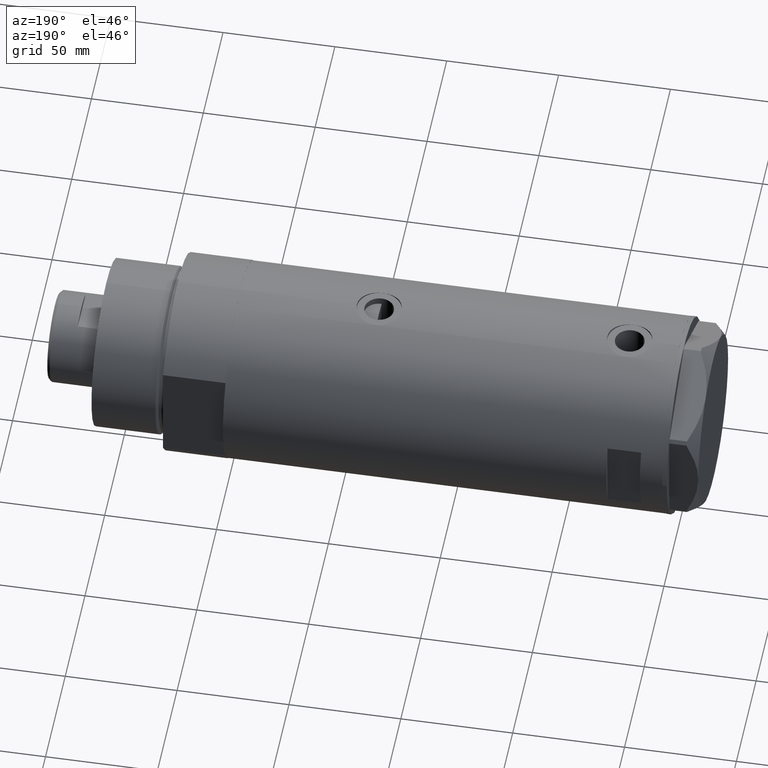
[diagram: clean part render]
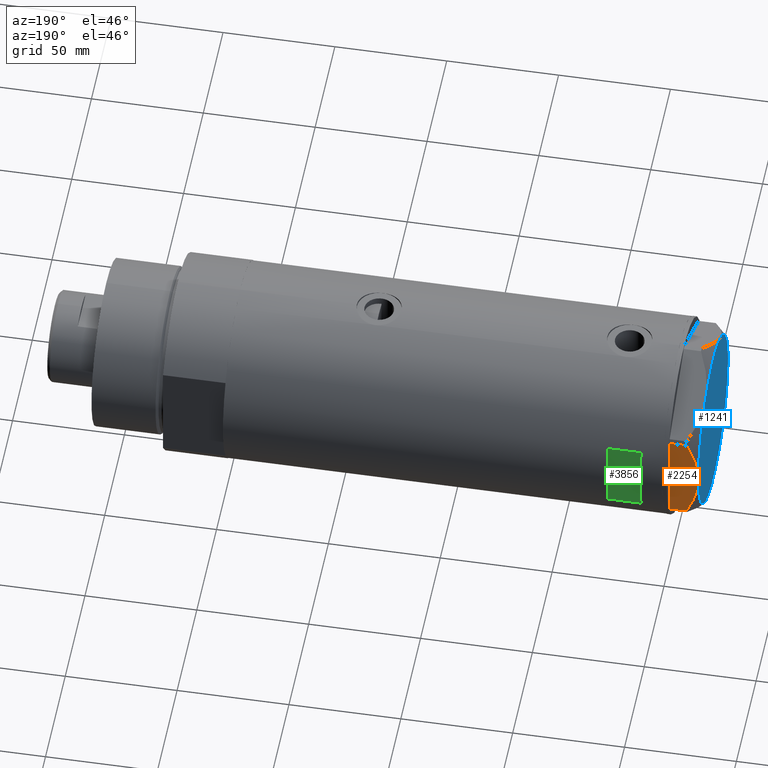
[diagram: same view with three faces highlighted in distinct colors, each labeled with its STEP entity id]
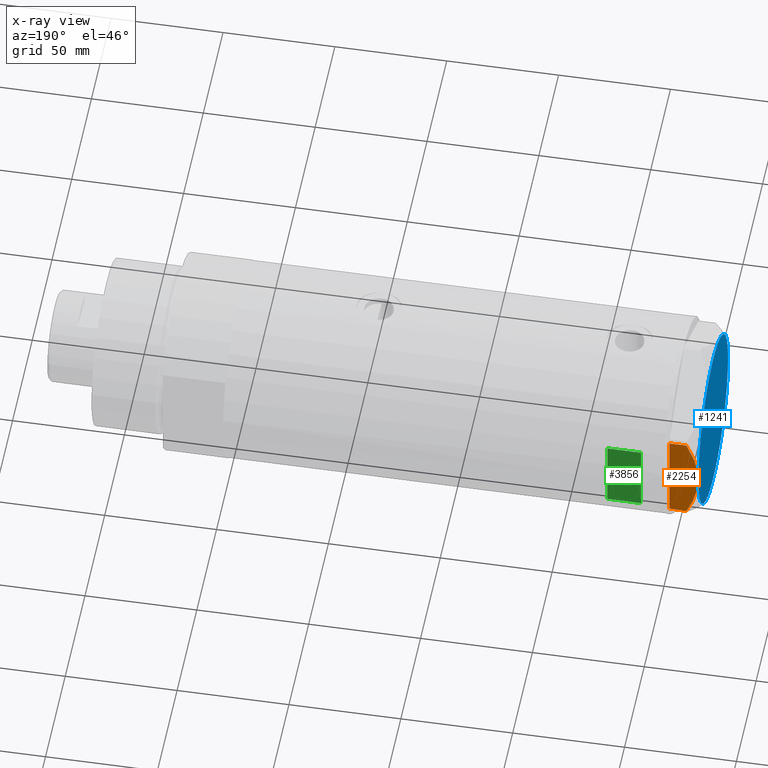
[diagram: x-ray of the same camera — body ghosted, the three highlighted faces saturated]
A machine part, auxiliary view with three faces highlighted in distinct colors.
The next image is the same camera in x-ray (body ghosted, the three faces saturated) — at least one of them is partly hidden behind the body in this view.
Their STEP definitions:

[orange] entity #2254 — the highlighted planar face has unit normal (0, -1, -0).
#134 = CARTESIAN_POINT ( 'NONE',  ( 37.75000000000000000, 20.67497266190835958, 13.00000000000000000 ) ) ;
#207 = CARTESIAN_POINT ( 'NONE',  ( 37.75000000000000711, 8.905753572404311313, 11.99914237172014353 ) ) ;
#215 = CARTESIAN_POINT ( 'NONE',  ( 37.75000000000002132, -20.67497266190835958, 0.000000000000000000 ) ) ;
#376 = VECTOR ( 'NONE', #2470, 1000.000000000000000 ) ;
#396 = DIRECTION ( 'NONE',  ( 0.000000000000000000, 0.000000000000000000, 1.000000000000000000 ) ) ;
#553 = CARTESIAN_POINT ( 'NONE',  ( 37.75000000000001421, -14.89874562435959504, 10.17375260246623547 ) ) ;
#623 = LINE ( 'NONE', #2355, #4203 ) ;
#650 = EDGE_CURVE ( 'NONE', #1083, #2188, #4208, .T. ) ;
#651 = CARTESIAN_POINT ( 'NONE',  ( 37.75000000000000000, 14.04742653794396823, 10.50092616350622166 ) ) ;
#868 = EDGE_CURVE ( 'NONE', #2104, #3434, #2542, .T. ) ;
#998 = CARTESIAN_POINT ( 'NONE',  ( 37.75000000000000000, 17.40390235304479560, 9.187919079516760235 ) ) ;
#1083 = VERTEX_POINT ( 'NONE', #2197 ) ;
#1132 = VERTEX_POINT ( 'NONE', #2803 ) ;
#1153 = CARTESIAN_POINT ( 'NONE',  ( 37.75000000000001421, -12.33018559404072256, 11.04557586999680296 ) ) ;
#1172 = CARTESIAN_POINT ( 'NONE',  ( 37.75000000000001421, -19.06473524669325315, 8.482612457517156201 ) ) ;
#1183 = B_SPLINE_CURVE_WITH_KNOTS ( 'NONE', 3,
 ( #2909, #1172, #2314, #553, #4302, #1153, #1204, #1546, #3977, #2602 ),
 .UNSPECIFIED., .F., .F.,
 ( 4, 2, 2, 2, 4 ),
 ( 0.05601050456479946676, 0.06138217239161374711, 0.06406800630502089422, 0.06675384021842803439, 0.07749717587205659508 ),
 .UNSPECIFIED. ) ;
#1204 = CARTESIAN_POINT ( 'NONE',  ( 37.75000000000002132, -11.46926194450820802, 11.30493988086502632 ) ) ;
#1279 = CARTESIAN_POINT ( 'NONE',  ( 37.75000000000000711, 12.34877760086738441, 11.06613894200179260 ) ) ;
#1291 = DIRECTION ( 'NONE',  ( -1.000000000000000000, -4.775569585389645902E-16, 0.000000000000000000 ) ) ;
#1360 = AXIS2_PLACEMENT_3D ( 'NONE', #1608, #1291, #1957 ) ;
#1383 = EDGE_CURVE ( 'NONE', #1132, #3434, #2918, .T. ) ;
#1546 = CARTESIAN_POINT ( 'NONE',  ( 37.75000000000000711, -7.143641079404811300, 12.47474846747315347 ) ) ;
#1608 = CARTESIAN_POINT ( 'NONE',  ( 37.75000000000002132, -21.79497266190837124, 13.00000000000000000 ) ) ;
#1643 = CARTESIAN_POINT ( 'NONE',  ( 37.75000000000000000, 19.05362936076134162, 8.470554105526112210 ) ) ;
#1683 = CARTESIAN_POINT ( 'NONE',  ( 37.75000000000000000, 20.67497266190835958, 7.709124142616976094 ) ) ;
#1717 = EDGE_LOOP ( 'NONE', ( #2786, #3218, #2083, #1727, #2628 ) ) ;
#1727 = ORIENTED_EDGE ( 'NONE', *, *, #868, .T. ) ;
#1957 = DIRECTION ( 'NONE',  ( 4.775569585389645902E-16, -1.000000000000000000, 0.000000000000000000 ) ) ;
#2040 = CARTESIAN_POINT ( 'NONE',  ( 37.75000000000000000, 7.161343005612795132, 12.36677985830370829 ) ) ;
#2083 = ORIENTED_EDGE ( 'NONE', *, *, #4547, .T. ) ;
#2104 = VERTEX_POINT ( 'NONE', #2570 ) ;
#2188 = VERTEX_POINT ( 'NONE', #215 ) ;
#2197 = CARTESIAN_POINT ( 'NONE',  ( 37.75000000000002132, -20.67497266190837024, 7.709124142616982311 ) ) ;
#2236 = VECTOR ( 'NONE', #396, 1000.000000000000000 ) ;
#2250 = CARTESIAN_POINT ( 'NONE',  ( 37.75000000000000711, 1.802777518484591547E-14, 13.00000000000000000 ) ) ;
#2254 = ADVANCED_FACE ( 'NONE', ( #4438 ), #4104, .F. ) ;
#2314 = CARTESIAN_POINT ( 'NONE',  ( 37.75000000000002132, -17.42329546264822682, 9.202188366597432889 ) ) ;
#2355 = CARTESIAN_POINT ( 'NONE',  ( 37.75000000000002132, -21.79497266190837124, 0.000000000000000000 ) ) ;
#2390 = CARTESIAN_POINT ( 'NONE',  ( 37.75000000000000711, 16.56731140591521978, 9.531835068628826235 ) ) ;
#2470 = DIRECTION ( 'NONE',  ( 0.000000000000000000, 0.000000000000000000, -1.000000000000000000 ) ) ;
#2542 = LINE ( 'NONE', #134, #2236 ) ;
#2570 = CARTESIAN_POINT ( 'NONE',  ( 37.75000000000000000, 20.67497266190835958, 0.000000000000000000 ) ) ;
#2602 = CARTESIAN_POINT ( 'NONE',  ( 37.75000000000000711, 1.802777518484591547E-14, 13.00000000000000000 ) ) ;
#2628 = ORIENTED_EDGE ( 'NONE', *, *, #1383, .F. ) ;
#2786 = ORIENTED_EDGE ( 'NONE', *, *, #4410, .F. ) ;
#2803 = CARTESIAN_POINT ( 'NONE',  ( 37.75000000000000711, 1.802777518484591547E-14, 13.00000000000000000 ) ) ;
#2909 = CARTESIAN_POINT ( 'NONE',  ( 37.75000000000002132, -20.67497266190837024, 7.709124142616982311 ) ) ;
#2918 = B_SPLINE_CURVE_WITH_KNOTS ( 'NONE', 3,
 ( #2250, #4116, #3416, #4452, #4471, #2040, #207, #1279, #651, #2390, #998, #1643, #4081, #1683 ),
 .UNSPECIFIED., .F., .F.,
 ( 4, 2, 2, 2, 2, 2, 4 ),
 ( 0.07749717587205659508, 0.08017617902235897598, 0.08285518217266137075, 0.08821318847326614643, 0.09357119477387092210, 0.09625019792417330300, 0.09892920107447569777 ),
 .UNSPECIFIED. ) ;
#3218 = ORIENTED_EDGE ( 'NONE', *, *, #650, .T. ) ;
#3416 = CARTESIAN_POINT ( 'NONE',  ( 37.75000000000000000, 1.811728074765807994, 12.96720910498919466 ) ) ;
#3434 = VERTEX_POINT ( 'NONE', #4069 ) ;
#3447 = DIRECTION ( 'NONE',  ( -4.775569585389645902E-16, 1.000000000000000000, 0.000000000000000000 ) ) ;
#3977 = CARTESIAN_POINT ( 'NONE',  ( 37.75000000000000000, -3.615248338761618552, 12.99999999999998934 ) ) ;
#4069 = CARTESIAN_POINT ( 'NONE',  ( 37.75000000000000000, 20.67497266190835958, 7.709124142616976094 ) ) ;
#4081 = CARTESIAN_POINT ( 'NONE',  ( 37.75000000000000000, 19.86857906850807964, 8.096480699986591034 ) ) ;
#4104 = PLANE ( 'NONE',  #1360 ) ;
#4116 = CARTESIAN_POINT ( 'NONE',  ( 37.75000000000000711, 0.9015134592203699615, 12.99999999999999112 ) ) ;
#4175 = CARTESIAN_POINT ( 'NONE',  ( 37.75000000000002132, -20.67497266190835958, 13.00000000000000000 ) ) ;
#4203 = VECTOR ( 'NONE', #3447, 1000.000000000000000 ) ;
#4208 = LINE ( 'NONE', #4175, #376 ) ;
#4302 = CARTESIAN_POINT ( 'NONE',  ( 37.75000000000002132, -14.04433099034386778, 10.48027127384610679 ) ) ;
#4410 = EDGE_CURVE ( 'NONE', #1083, #1132, #1183, .T. ) ;
#4438 = FACE_OUTER_BOUND ( 'NONE', #1717, .T. ) ;
#4452 = CARTESIAN_POINT ( 'NONE',  ( 37.75000000000000711, 3.611424898442247233, 12.83826937481875596 ) ) ;
#4471 = CARTESIAN_POINT ( 'NONE',  ( 37.75000000000000711, 4.503994958793054337, 12.74237531377021604 ) ) ;
#4547 = EDGE_CURVE ( 'NONE', #2188, #2104, #623, .T. ) ;

[blue] entity #1241 — the highlighted planar face has unit normal (-1, -0, 0).
#19 = DIRECTION ( 'NONE',  ( 0.000000000000000000, 0.000000000000000000, 1.000000000000000000 ) ) ;
#196 = VERTEX_POINT ( 'NONE', #542 ) ;
#250 = DIRECTION ( 'NONE',  ( 0.000000000000000000, 0.000000000000000000, 1.000000000000000000 ) ) ;
#370 = CIRCLE ( 'NONE', #3099, 37.75000000000000000 ) ;
#375 = AXIS2_PLACEMENT_3D ( 'NONE', #3377, #250, #2673 ) ;
#379 = ORIENTED_EDGE ( 'NONE', *, *, #3675, .T. ) ;
#542 = CARTESIAN_POINT ( 'NONE',  ( -37.75000000000000000, -1.201851678989727067E-14, 13.00000000000000000 ) ) ;
#609 = CIRCLE ( 'NONE', #1494, 37.75000000000000000 ) ;
#743 = DIRECTION ( 'NONE',  ( 1.000000000000000000, 0.000000000000000000, -0.000000000000000000 ) ) ;
#842 = EDGE_CURVE ( 'NONE', #1879, #1132, #1128, .T. ) ;
#991 = CARTESIAN_POINT ( 'NONE',  ( 0.000000000000000000, 0.000000000000000000, 13.00000000000000000 ) ) ;
#1113 = CARTESIAN_POINT ( 'NONE',  ( 0.000000000000000000, 0.000000000000000000, 13.00000000000000000 ) ) ;
#1128 = CIRCLE ( 'NONE', #2380, 37.75000000000000000 ) ;
#1132 = VERTEX_POINT ( 'NONE', #2803 ) ;
#1241 = ADVANCED_FACE ( 'NONE', ( #1446 ), #3895, .T. ) ;
#1397 = DIRECTION ( 'NONE',  ( 1.000000000000000000, 0.000000000000000000, 0.000000000000000000 ) ) ;
#1423 = CARTESIAN_POINT ( 'NONE',  ( 0.000000000000000000, 0.000000000000000000, 13.00000000000000000 ) ) ;
#1438 = CARTESIAN_POINT ( 'NONE',  ( 18.87499999999998579, -32.69245899286256218, 13.00000000000000000 ) ) ;
#1446 = FACE_OUTER_BOUND ( 'NONE', #3118, .T. ) ;
#1494 = AXIS2_PLACEMENT_3D ( 'NONE', #2489, #19, #2100 ) ;
#1839 = EDGE_CURVE ( 'NONE', #1132, #4413, #2001, .T. ) ;
#1844 = AXIS2_PLACEMENT_3D ( 'NONE', #3397, #4086, #4127 ) ;
#1861 = CARTESIAN_POINT ( 'NONE',  ( 18.87500000000000000, 32.69245899286255508, 13.00000000000000000 ) ) ;
#1878 = ORIENTED_EDGE ( 'NONE', *, *, #3069, .T. ) ;
#1879 = VERTEX_POINT ( 'NONE', #1438 ) ;
#2001 = CIRCLE ( 'NONE', #3690, 37.75000000000000000 ) ;
#2034 = DIRECTION ( 'NONE',  ( 0.000000000000000000, 0.000000000000000000, 1.000000000000000000 ) ) ;
#2053 = CARTESIAN_POINT ( 'NONE',  ( 0.000000000000000000, 0.000000000000000000, 13.00000000000000000 ) ) ;
#2100 = DIRECTION ( 'NONE',  ( 1.000000000000000000, 0.000000000000000000, 0.000000000000000000 ) ) ;
#2262 = ORIENTED_EDGE ( 'NONE', *, *, #842, .T. ) ;
#2339 = DIRECTION ( 'NONE',  ( 0.000000000000000000, 0.000000000000000000, 1.000000000000000000 ) ) ;
#2380 = AXIS2_PLACEMENT_3D ( 'NONE', #1423, #2435, #1397 ) ;
#2435 = DIRECTION ( 'NONE',  ( 0.000000000000000000, 0.000000000000000000, 1.000000000000000000 ) ) ;
#2465 = VERTEX_POINT ( 'NONE', #3716 ) ;
#2489 = CARTESIAN_POINT ( 'NONE',  ( 0.000000000000000000, 0.000000000000000000, 13.00000000000000000 ) ) ;
#2504 = ORIENTED_EDGE ( 'NONE', *, *, #3406, .T. ) ;
#2582 = CIRCLE ( 'NONE', #1844, 37.75000000000000000 ) ;
#2588 = AXIS2_PLACEMENT_3D ( 'NONE', #1113, #4240, #743 ) ;
#2673 = DIRECTION ( 'NONE',  ( 1.000000000000000000, 0.000000000000000000, 0.000000000000000000 ) ) ;
#2707 = ORIENTED_EDGE ( 'NONE', *, *, #1839, .T. ) ;
#2747 = CARTESIAN_POINT ( 'NONE',  ( -18.87499999999999645, -32.69245899286255508, 13.00000000000000000 ) ) ;
#2803 = CARTESIAN_POINT ( 'NONE',  ( 37.75000000000000711, 1.802777518484591547E-14, 13.00000000000000000 ) ) ;
#3065 = DIRECTION ( 'NONE',  ( 1.000000000000000000, 0.000000000000000000, 0.000000000000000000 ) ) ;
#3069 = EDGE_CURVE ( 'NONE', #196, #4524, #370, .T. ) ;
#3099 = AXIS2_PLACEMENT_3D ( 'NONE', #2053, #2339, #4091 ) ;
#3118 = EDGE_LOOP ( 'NONE', ( #2262, #2707, #3515, #379, #1878, #2504 ) ) ;
#3377 = CARTESIAN_POINT ( 'NONE',  ( 0.000000000000000000, 0.000000000000000000, 13.00000000000000000 ) ) ;
#3394 = CIRCLE ( 'NONE', #375, 37.75000000000000000 ) ;
#3397 = CARTESIAN_POINT ( 'NONE',  ( 0.000000000000000000, 0.000000000000000000, 13.00000000000000000 ) ) ;
#3406 = EDGE_CURVE ( 'NONE', #4524, #1879, #3394, .T. ) ;
#3515 = ORIENTED_EDGE ( 'NONE', *, *, #4219, .T. ) ;
#3675 = EDGE_CURVE ( 'NONE', #2465, #196, #2582, .T. ) ;
#3690 = AXIS2_PLACEMENT_3D ( 'NONE', #991, #2034, #3065 ) ;
#3716 = CARTESIAN_POINT ( 'NONE',  ( -18.87499999999999645, 32.69245899286256218, 13.00000000000000000 ) ) ;
#3895 = PLANE ( 'NONE',  #2588 ) ;
#4086 = DIRECTION ( 'NONE',  ( 0.000000000000000000, 0.000000000000000000, 1.000000000000000000 ) ) ;
#4091 = DIRECTION ( 'NONE',  ( 1.000000000000000000, 0.000000000000000000, 0.000000000000000000 ) ) ;
#4127 = DIRECTION ( 'NONE',  ( 1.000000000000000000, 0.000000000000000000, 0.000000000000000000 ) ) ;
#4219 = EDGE_CURVE ( 'NONE', #4413, #2465, #609, .T. ) ;
#4240 = DIRECTION ( 'NONE',  ( 0.000000000000000000, 0.000000000000000000, 1.000000000000000000 ) ) ;
#4413 = VERTEX_POINT ( 'NONE', #1861 ) ;
#4524 = VERTEX_POINT ( 'NONE', #2747 ) ;

[green] entity #3856 — the highlighted planar face has unit normal (0, -1, -0).
#13 = VECTOR ( 'NONE', #928, 1000.000000000000000 ) ;
#23 = EDGE_CURVE ( 'NONE', #202, #570, #266, .T. ) ;
#202 = VERTEX_POINT ( 'NONE', #1284 ) ;
#259 = LINE ( 'NONE', #4469, #13 ) ;
#266 = LINE ( 'NONE', #4067, #676 ) ;
#277 = EDGE_LOOP ( 'NONE', ( #1290, #2973, #1589, #3673 ) ) ;
#388 = CARTESIAN_POINT ( 'NONE',  ( 15.96871942267132027, 40.99999999999999289, 73.20000000000000284 ) ) ;
#570 = VERTEX_POINT ( 'NONE', #2773 ) ;
#676 = VECTOR ( 'NONE', #918, 1000.000000000000000 ) ;
#682 = DIRECTION ( 'NONE',  ( 0.000000000000000000, 0.000000000000000000, -1.000000000000000000 ) ) ;
#918 = DIRECTION ( 'NONE',  ( 0.000000000000000000, 0.000000000000000000, 1.000000000000000000 ) ) ;
#928 = DIRECTION ( 'NONE',  ( 1.000000000000000000, -0.000000000000000000, -0.000000000000000000 ) ) ;
#1020 = EDGE_CURVE ( 'NONE', #202, #3235, #259, .T. ) ;
#1224 = VERTEX_POINT ( 'NONE', #1486 ) ;
#1284 = CARTESIAN_POINT ( 'NONE',  ( -15.96871942267132027, 40.99999999999999289, 73.20000000000000284 ) ) ;
#1290 = ORIENTED_EDGE ( 'NONE', *, *, #3098, .T. ) ;
#1342 = AXIS2_PLACEMENT_3D ( 'NONE', #2438, #4499, #682 ) ;
#1361 = EDGE_CURVE ( 'NONE', #570, #1224, #2577, .T. ) ;
#1486 = CARTESIAN_POINT ( 'NONE',  ( 15.96871942267132027, 40.99999999999999289, 88.20000000000000284 ) ) ;
#1589 = ORIENTED_EDGE ( 'NONE', *, *, #23, .T. ) ;
#2164 = VECTOR ( 'NONE', #2324, 1000.000000000000000 ) ;
#2324 = DIRECTION ( 'NONE',  ( 1.000000000000000000, -0.000000000000000000, -0.000000000000000000 ) ) ;
#2438 = CARTESIAN_POINT ( 'NONE',  ( -44.00000000000000000, 40.99999999999999289, 88.20000000000000284 ) ) ;
#2577 = LINE ( 'NONE', #4397, #2164 ) ;
#2752 = DIRECTION ( 'NONE',  ( -0.000000000000000000, -0.000000000000000000, -1.000000000000000000 ) ) ;
#2773 = CARTESIAN_POINT ( 'NONE',  ( -15.96871942267132027, 40.99999999999999289, 88.20000000000000284 ) ) ;
#2774 = CARTESIAN_POINT ( 'NONE',  ( 15.96871942267132027, 40.99999999999999289, -98.20000000000000284 ) ) ;
#2973 = ORIENTED_EDGE ( 'NONE', *, *, #1020, .F. ) ;
#3087 = LINE ( 'NONE', #2774, #4264 ) ;
#3098 = EDGE_CURVE ( 'NONE', #1224, #3235, #3087, .T. ) ;
#3100 = PLANE ( 'NONE',  #1342 ) ;
#3235 = VERTEX_POINT ( 'NONE', #388 ) ;
#3673 = ORIENTED_EDGE ( 'NONE', *, *, #1361, .T. ) ;
#3835 = FACE_OUTER_BOUND ( 'NONE', #277, .T. ) ;
#3856 = ADVANCED_FACE ( 'NONE', ( #3835 ), #3100, .F. ) ;
#4067 = CARTESIAN_POINT ( 'NONE',  ( -15.96871942267132027, 40.99999999999999289, -98.20000000000000284 ) ) ;
#4264 = VECTOR ( 'NONE', #2752, 1000.000000000000000 ) ;
#4397 = CARTESIAN_POINT ( 'NONE',  ( -44.00000000000000000, 40.99999999999999289, 88.20000000000000284 ) ) ;
#4469 = CARTESIAN_POINT ( 'NONE',  ( -44.00000000000000000, 40.99999999999999289, 73.20000000000000284 ) ) ;
#4499 = DIRECTION ( 'NONE',  ( 0.000000000000000000, -1.000000000000000000, -0.000000000000000000 ) ) ;